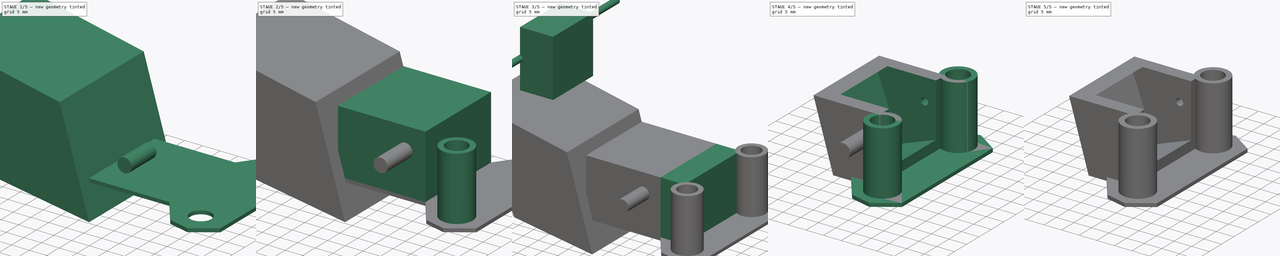
[diagram: build sequence overview — one tinted view per stage of 5, left to right]
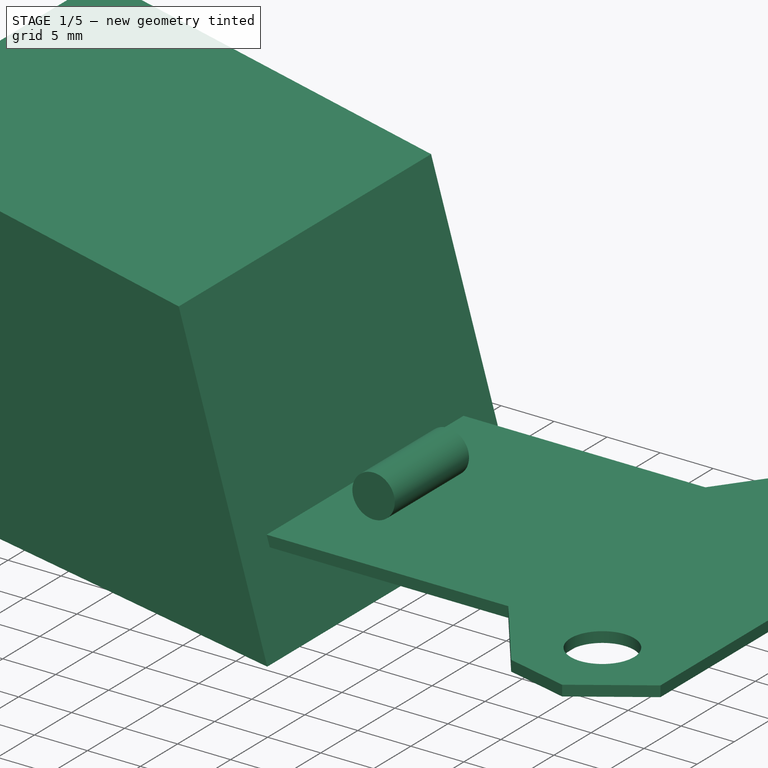
[diagram: stage 1 of 5 — iso view after this stage's code; geometry added in this stage tinted green]
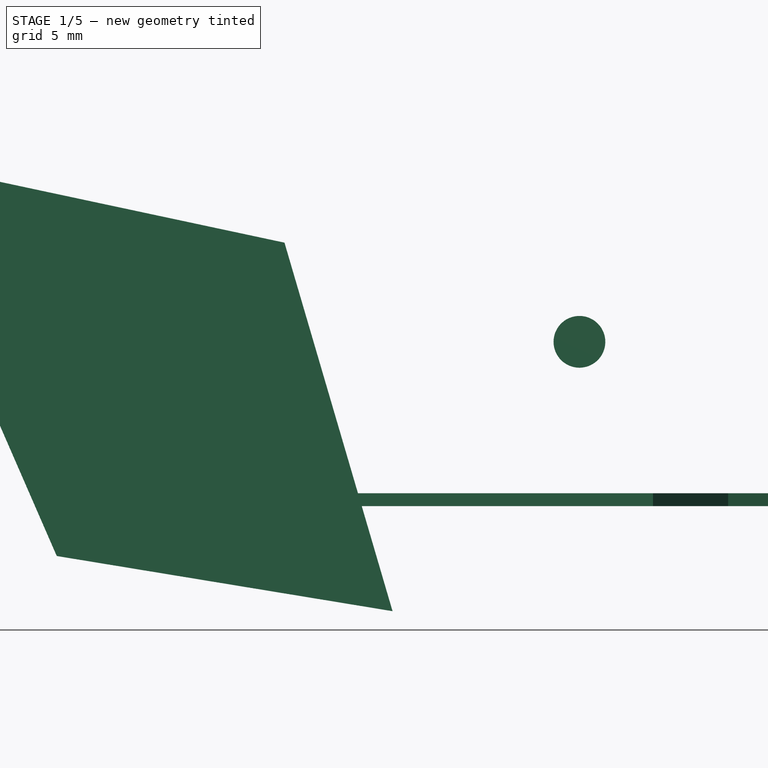
[diagram: stage 1 of 5 — front view after this stage's code; geometry added in this stage tinted green]
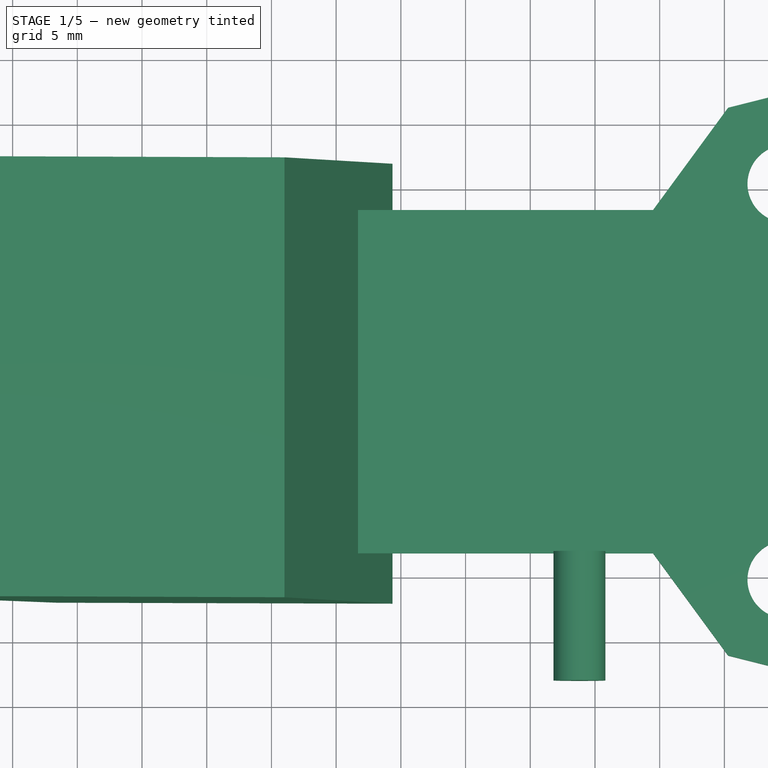
[diagram: stage 1 of 5 — top view after this stage's code; geometry added in this stage tinted green]
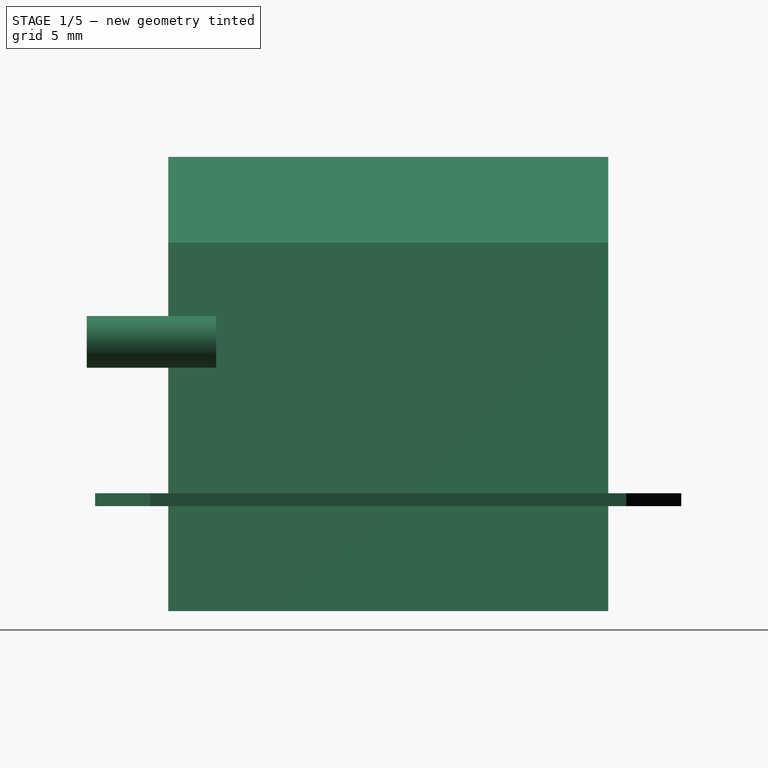
[diagram: stage 1 of 5 — right view after this stage's code; geometry added in this stage tinted green]
FCSTD DOCUMENT  (FreeCAD 0.19R24267 +99 (Git))
Label: mark4
License: All rights reserved
LicenseURL: http://en.wikipedia.org/wiki/All_rights_reserved
objects: PartDesign::Pad×8, Sketcher::SketchObject×6, Part::Cut×4, PartDesign::Body×3, PartDesign::Pocket×2, Part::Cylinder×2, App::MeasureDistance×1
note: 35 computed .brp shape members not serialized (recipe doc carries the construction recipe); baked Part::Feature solids carry a one-line shape summary decoded from their .brp

FEATURE [Sketcher::SketchObject] Sketch
  FullyConstrained = false
  MapMode = 5
  Support = -> [XY_Plane]
  sketch-geometry (14):
    g0: Circle CenterX=59.784 CenterY=15.3 CenterZ=0 NormalX=0 NormalY=0 NormalZ=1 AngleXU=0 Radius=3
    g1: LineSegment StartX=61.1287 StartY=22.645 StartZ=0 EndX=55.2887 EndY=21.1735 EndZ=0
    g2: LineSegment StartX=55.2887 StartY=21.1735 StartZ=0 EndX=49.4855 EndY=13.266 EndZ=0
    g3: LineSegment StartX=49.4855 StartY=13.266 StartZ=0 EndX=24.7194 EndY=13.266 EndZ=0
    g4: LineSegment StartX=24.7194 StartY=13.266 StartZ=0 EndX=24.7194 EndY=0 EndZ=0
    g5: LineSegment StartX=61.1287 StartY=22.645 StartZ=0 EndX=67.4243 EndY=18.3892 EndZ=0
    g6: LineSegment StartX=67.4243 StartY=18.3892 StartZ=0 EndX=67.4243 EndY=0 EndZ=0
    g7: Circle CenterX=59.784 CenterY=-15.3 CenterZ=0 NormalX=0 NormalY=0 NormalZ=1 AngleXU=0 Radius=3
    g8: LineSegment StartX=61.1287 StartY=-22.645 StartZ=0 EndX=55.2887 EndY=-21.1735 EndZ=0
    g9: LineSegment StartX=55.2887 StartY=-21.1735 StartZ=0 EndX=49.4855 EndY=-13.266 EndZ=0
    g10: LineSegment StartX=49.4855 StartY=-13.266 StartZ=0 EndX=24.7194 EndY=-13.266 EndZ=0
    g11: LineSegment StartX=24.7194 StartY=-13.266 StartZ=0 EndX=24.7194 EndY=0 EndZ=0
    g12: LineSegment StartX=61.1287 StartY=-22.645 StartZ=0 EndX=67.4243 EndY=-18.3892 EndZ=0
    g13: LineSegment StartX=67.4243 StartY=-18.3892 StartZ=0 EndX=67.4243 EndY=0 EndZ=0
  constraints (21):
    c: Diameter(g0) = 6
    c: DistanceY(g-1,g0) = 15.3
    c: Coincident(g1,g2)
    c: Coincident(g2,g3)
    c: Horizontal(g3)
    c: Coincident(g3,g4)
    c: PointOnObject(g4,g-1)
    c: Vertical(g4)
    c: Coincident(g1,g5)
    c: Coincident(g5,g6)
    c: PointOnObject(g6,g-1)
    c: Vertical(g6)
    c: Diameter(g7) = 6
    c: Coincident(g8,g9)
    c: Coincident(g9,g10)
    c: Horizontal(g10)
    c: Coincident(g10,g11)
    c: Vertical(g11)
    c: Coincident(g8,g12)
    c: Coincident(g12,g13)
    c: Vertical(g13)
FEATURE [PartDesign::Pad] Pad
  Direction = (1,1,1)
  Length = 1
  Length2 = 100
  Profile = -> Sketch
  Type = 0
FEATURE [Sketcher::SketchObject] Sketch005
  FullyConstrained = false
  MapMode = 5
  Placement = pos=(0,0,0) rot=(1,0,0;1.5708rad)
  Support = -> [XZ_Plane002]
  sketch-geometry (4):
    g0: LineSegment StartX=21.0075 StartY=20.3644 StartZ=0 EndX=29.3592 EndY=-8.11339 EndZ=0
    g1: LineSegment StartX=29.3592 StartY=-8.11339 StartZ=0 EndX=3.41123 EndY=-3.85064 EndZ=0
    g2: LineSegment StartX=3.41123 StartY=-3.85064 StartZ=0 EndX=-10.028 EndY=26.9953 EndZ=0
    g3: LineSegment StartX=-10.028 StartY=26.9953 StartZ=0 EndX=21.0075 EndY=20.3644 EndZ=0
  constraints (4):
    c: Coincident(g0,g1)
    c: Coincident(g1,g2)
    c: Coincident(g2,g3)
    c: Coincident(g3,g0)
FEATURE [PartDesign::Pad] Pad007
  Direction = (1,1,1)
  Length = 34
  Length2 = 100
  Midplane = true
  Placement = pos=(0,0,0) rot=(1,0,0;1.5708rad)
  Profile = -> Sketch005
  Type = 0
FEATURE [Part::Cylinder] Cylinder  label="圆柱体"
  Angle = 360
  AttacherType = Attacher::AttachEngine3D
  Height = 10
  Placement = pos=(43.8,-13.3,12.7) rot=(1,0,0;1.5708rad)
  Radius = 2
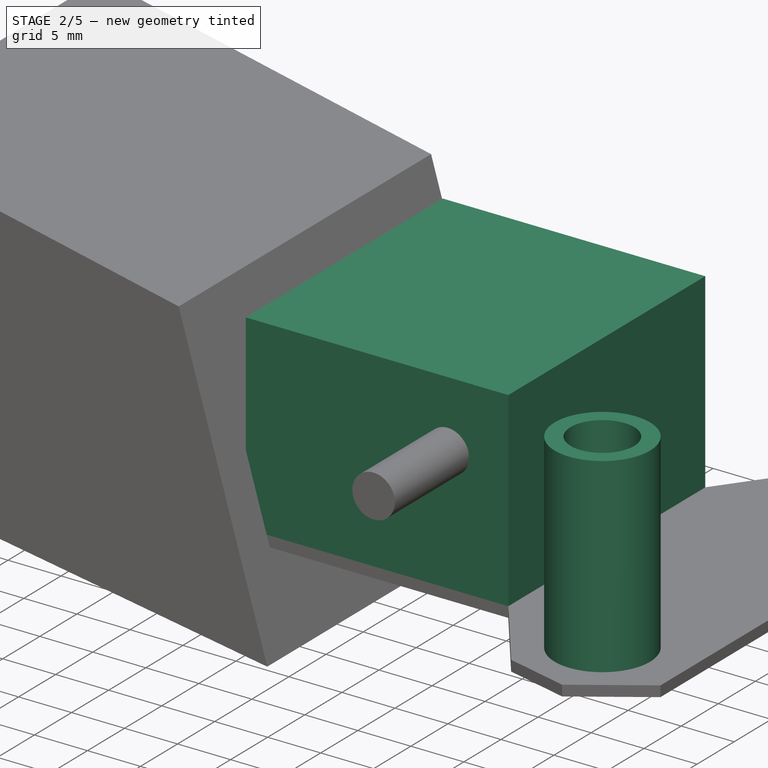
[diagram: stage 2 of 5 — iso view after this stage's code; geometry added in this stage tinted green]
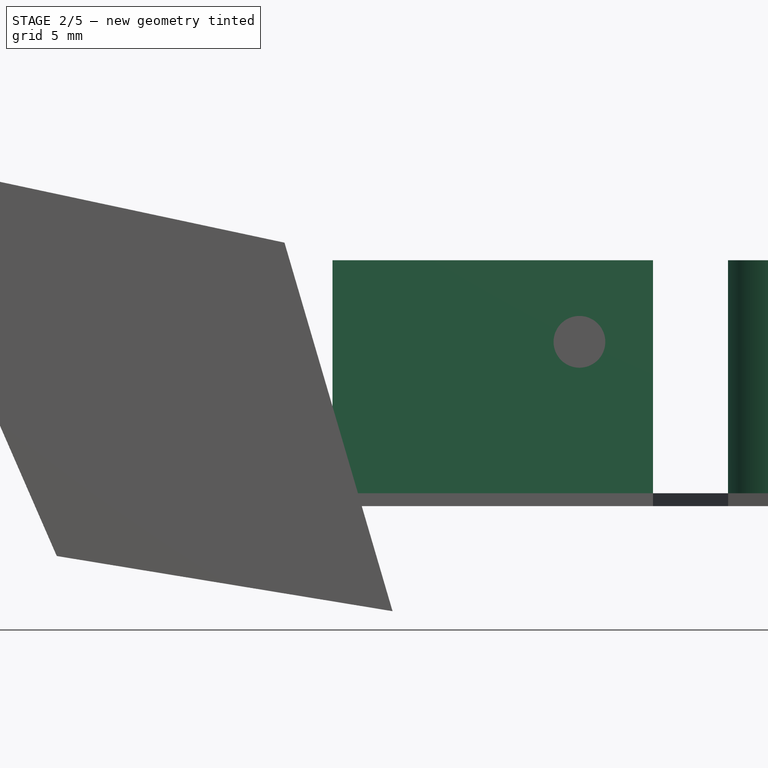
[diagram: stage 2 of 5 — front view after this stage's code; geometry added in this stage tinted green]
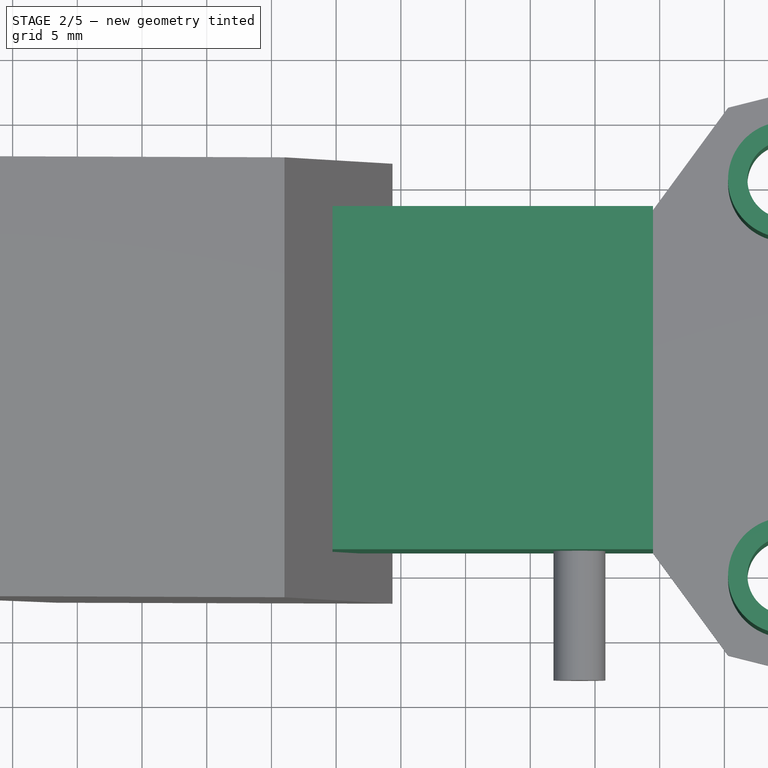
[diagram: stage 2 of 5 — top view after this stage's code; geometry added in this stage tinted green]
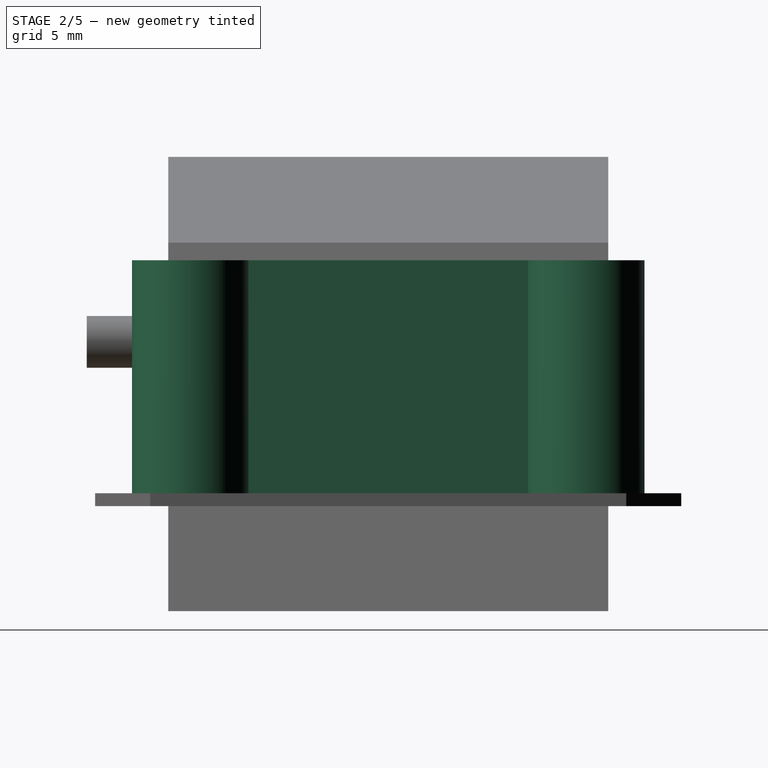
[diagram: stage 2 of 5 — right view after this stage's code; geometry added in this stage tinted green]
FEATURE [Sketcher::SketchObject] Sketch001
  ExternalGeometry = -> [Pad]
  FullyConstrained = false
  MapMode = 5
  Placement = pos=(0,0,1) rot=(0,0,1;0rad)
  Support = -> [Pad]
  sketch-geometry (8):
    g0: LineSegment StartX=24.7194 StartY=0 StartZ=0 EndX=24.7194 EndY=13.266 EndZ=0
    g1: LineSegment StartX=24.7194 StartY=13.266 StartZ=0 EndX=49.4855 EndY=13.266 EndZ=0
    g2: LineSegment StartX=49.4855 StartY=13.266 StartZ=0 EndX=49.4855 EndY=0 EndZ=0
    g3: Circle CenterX=59.784 CenterY=15.3 CenterZ=0 NormalX=0 NormalY=0 NormalZ=1 AngleXU=0 Radius=4.5
    g4: LineSegment StartX=24.7194 StartY=0 StartZ=0 EndX=24.7194 EndY=-13.266 EndZ=0
    g5: LineSegment StartX=24.7194 StartY=-13.266 StartZ=0 EndX=49.4855 EndY=-13.266 EndZ=0
    g6: LineSegment StartX=49.4855 StartY=-13.266 StartZ=0 EndX=49.4855 EndY=0 EndZ=0
    g7: Circle CenterX=59.784 CenterY=-15.3 CenterZ=0 NormalX=0 NormalY=0 NormalZ=1 AngleXU=0 Radius=4.5
  constraints (8):
    c: Coincident(g1,g2)
    c: PointOnObject(g2,g-1)
    c: Vertical(g2)
    c: Coincident(g3,g-3)
    c: Diameter(g3) = 9
    c: Coincident(g5,g6)
    c: Vertical(g6)
    c: Diameter(g7) = 9
FEATURE [PartDesign::Pad] Pad001
  BaseFeature = -> Pad
  Direction = (1,1,1)
  Length = 18
  Length2 = 100
  Profile = -> Sketch001
  Type = 0
FEATURE [PartDesign::Pocket] Pocket
  BaseFeature = -> Pad001
  Length = 22
  Length2 = 100
  Profile = -> Pad001 [Face25]
  Type = 0
FEATURE [PartDesign::Pocket] Pocket001
  BaseFeature = -> Pocket
  Length = 31
  Length2 = 100
  Profile = -> Pocket [Face26]
  Type = 0
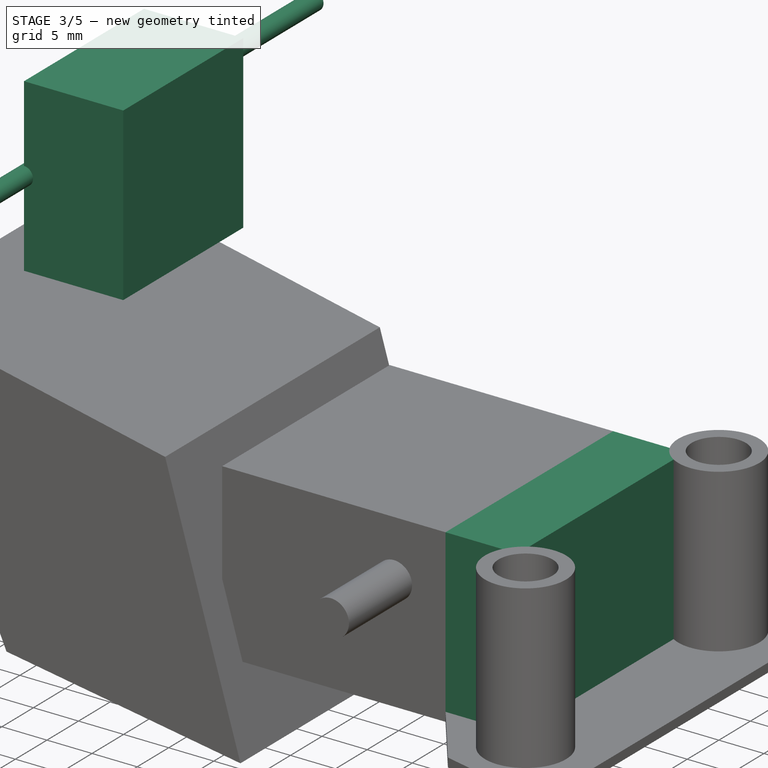
[diagram: stage 3 of 5 — iso view after this stage's code; geometry added in this stage tinted green]
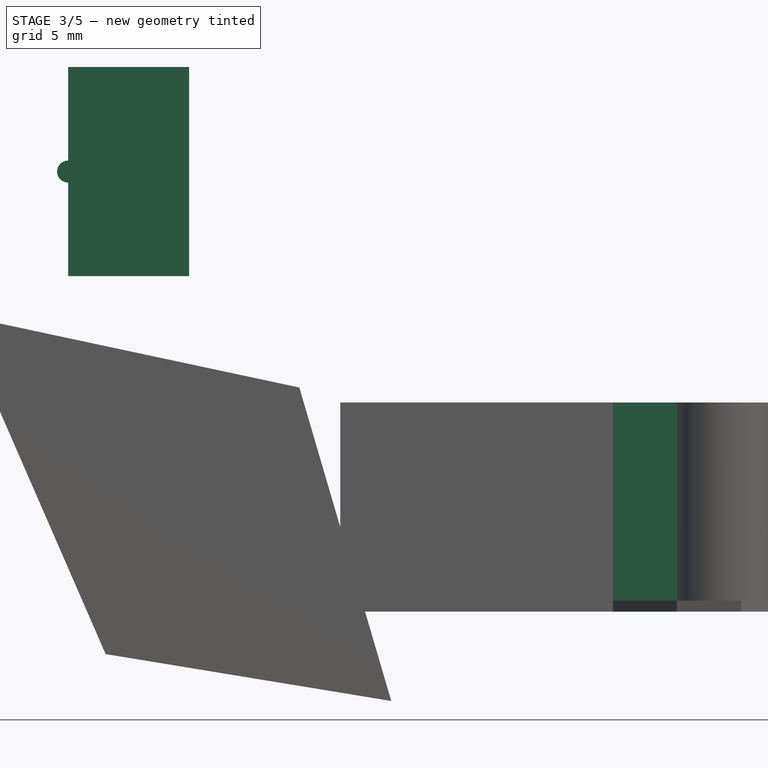
[diagram: stage 3 of 5 — front view after this stage's code; geometry added in this stage tinted green]
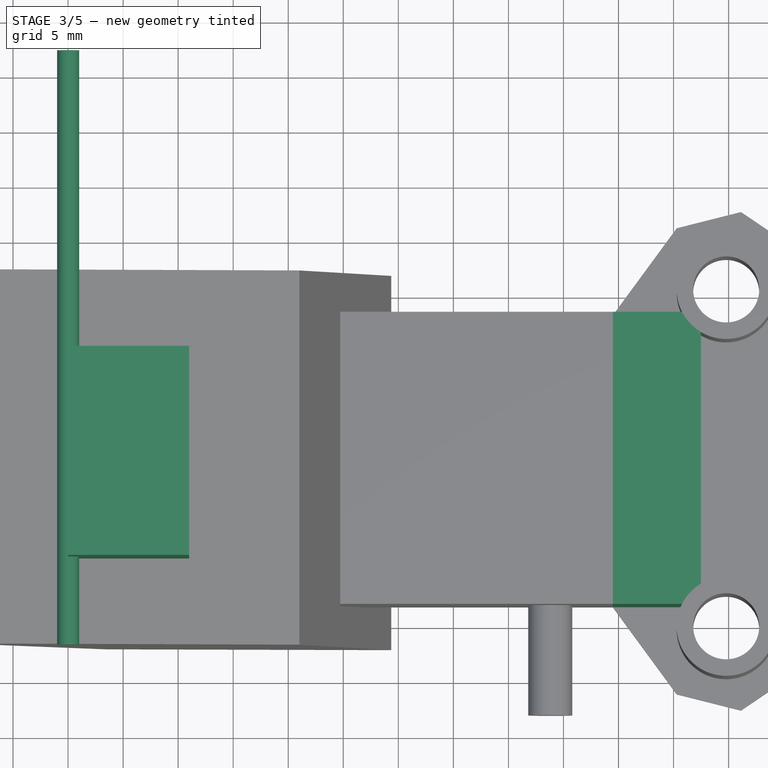
[diagram: stage 3 of 5 — top view after this stage's code; geometry added in this stage tinted green]
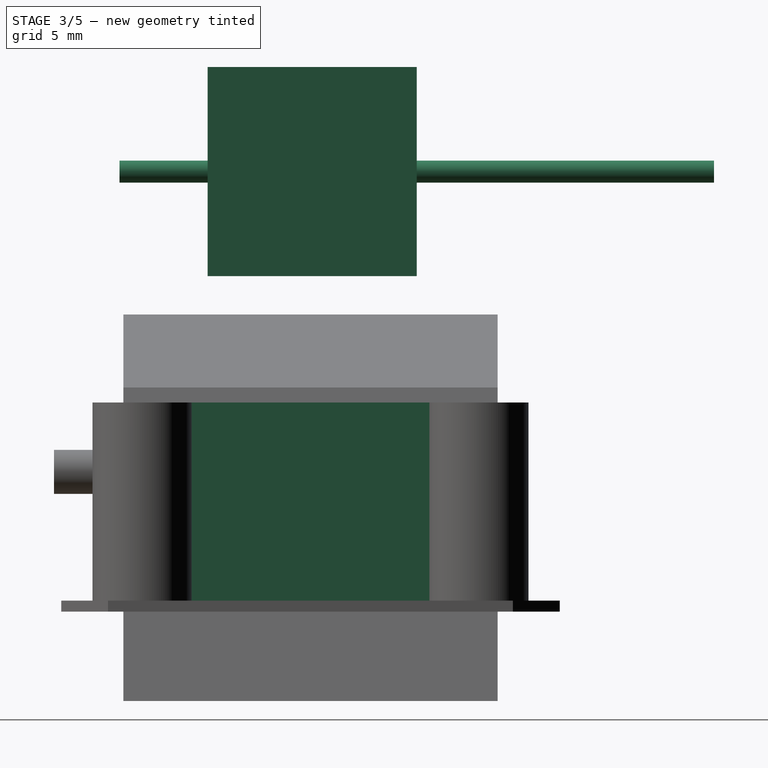
[diagram: stage 3 of 5 — right view after this stage's code; geometry added in this stage tinted green]
FEATURE [Sketcher::SketchObject] Sketch002
  FullyConstrained = false
  MapMode = 5
  Placement = pos=(0,0,0) rot=(0.57735,0.57735,0.57735;2.0944rad)
  Support = -> [YZ_Plane001]
  sketch-geometry (4):
    g0: LineSegment StartX=-9.34372 StartY=49.4769 StartZ=0 EndX=9.65628 EndY=49.4769 EndZ=0
    g1: LineSegment StartX=9.65628 StartY=49.4769 StartZ=0 EndX=9.65628 EndY=30.4769 EndZ=0
    g2: LineSegment StartX=9.65628 StartY=30.4769 StartZ=0 EndX=-9.34372 EndY=30.4769 EndZ=0
    g3: LineSegment StartX=-9.34372 StartY=30.4769 StartZ=0 EndX=-9.34372 EndY=49.4769 EndZ=0
  constraints (10):
    c: Coincident(g0,g1)
    c: Coincident(g1,g2)
    c: Coincident(g2,g3)
    c: Coincident(g3,g0)
    c: Horizontal(g0)
    c: Horizontal(g2)
    c: Vertical(g1)
    c: Vertical(g3)
    c: Distance(g0) = 19
    c: Distance(g3) = 19
FEATURE [PartDesign::Pad] Pad002
  Direction = (1,1,1)
  Length = 11
  Length2 = 100
  Placement = pos=(0,0,0) rot=(0.57735,0.57735,0.57735;2.0944rad)
  Profile = -> Sketch002
  Type = 0
FEATURE [Sketcher::SketchObject] Sketch003
  ExternalGeometry = -> [Pad002]
  FullyConstrained = true
  MapMode = 5
  Placement = pos=(4.2e-15,9.65628,-2.1e-15) rot=(0.57735,0.57735,0.57735;4.18879rad)
  Support = -> [Pad002]
  sketch-geometry (3):
    g0: Circle CenterX=39.9769 CenterY=0 CenterZ=0 NormalX=0 NormalY=0 NormalZ=1 AngleXU=0 Radius=1
    g1: LineSegment StartX=30.4769 StartY=-1.4e-14 StartZ=0 EndX=39.9769 EndY=0 EndZ=0
    g2: LineSegment StartX=39.9769 StartY=0 StartZ=0 EndX=49.4769 EndY=-2.14e-14 EndZ=0
  constraints (7):
    c: PointOnObject(g0,g-1)
    c: Coincident(g1,g-4)
    c: Coincident(g1,g0)
    c: Coincident(g2,g0)
    c: Coincident(g2,g-3)
    c: Equal(g1,g2)
    c: Diameter(g0) = 2
FEATURE [PartDesign::Pad] Pad003
  BaseFeature = -> Pad002
  Direction = (1,1,1)
  Length = 54
  Length2 = 100
  Midplane = true
  Placement = pos=(0,0,0) rot=(0.57735,0.57735,0.57735;2.0944rad)
  Profile = -> Sketch003
  Type = 0
FEATURE [PartDesign::Body] Body001
  Group = -> [Sketch002,Pad002,Sketch003,Pad003,Pad004]
  Origin = -> Origin001
  Placement = pos=(29.9378,0,50.2579) rot=(0,1,0;2.78729rad)
  Tip = -> Pad004
FEATURE [App::MeasureDistance] Distance  label="Distance: 1.50 mm"
  Distance = 1.49773
  P1 = (46.4017,15.4454,19)
  P2 = (44.9428,15.7846,19)
FEATURE [PartDesign::Pad] Pad005
  BaseFeature = -> Pocket001
  Direction = (1,1,1)
  Length = 8
  Length2 = 100
  Profile = -> Pocket001 [Face18]
  Type = 0
FEATURE [PartDesign::Pad] Pad006
  BaseFeature = -> Pad005
  Direction = (1,1,1)
  Length = 8
  Length2 = 100
  Profile = -> Pad005 [Face17]
  Type = 0
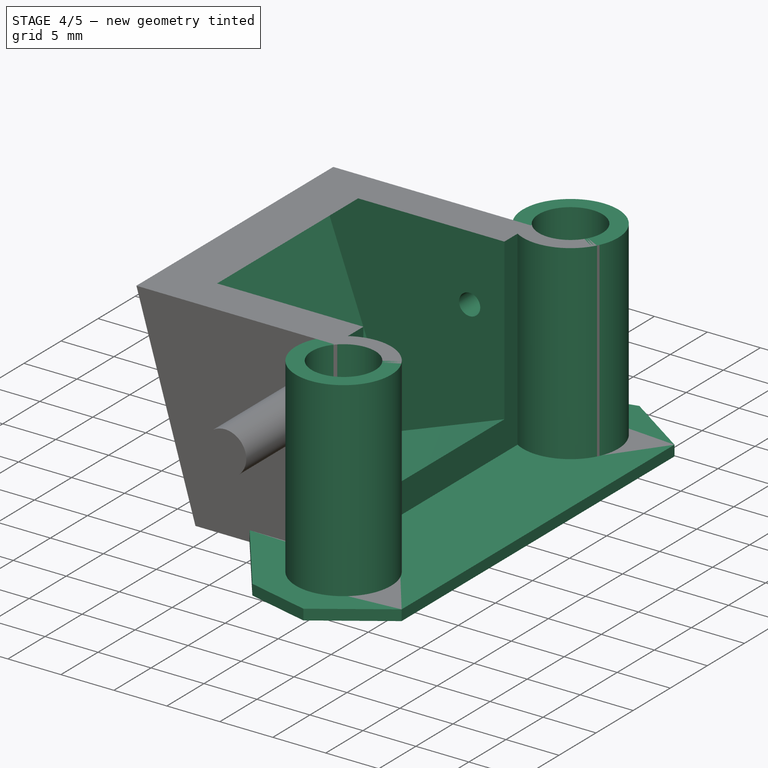
[diagram: stage 4 of 5 — iso view after this stage's code; geometry added in this stage tinted green]
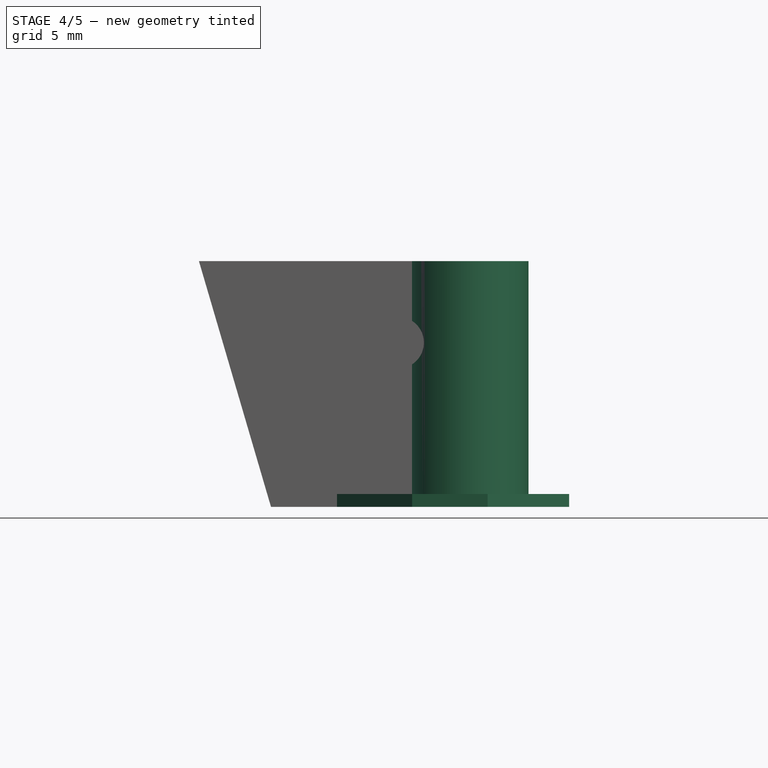
[diagram: stage 4 of 5 — front view after this stage's code; geometry added in this stage tinted green]
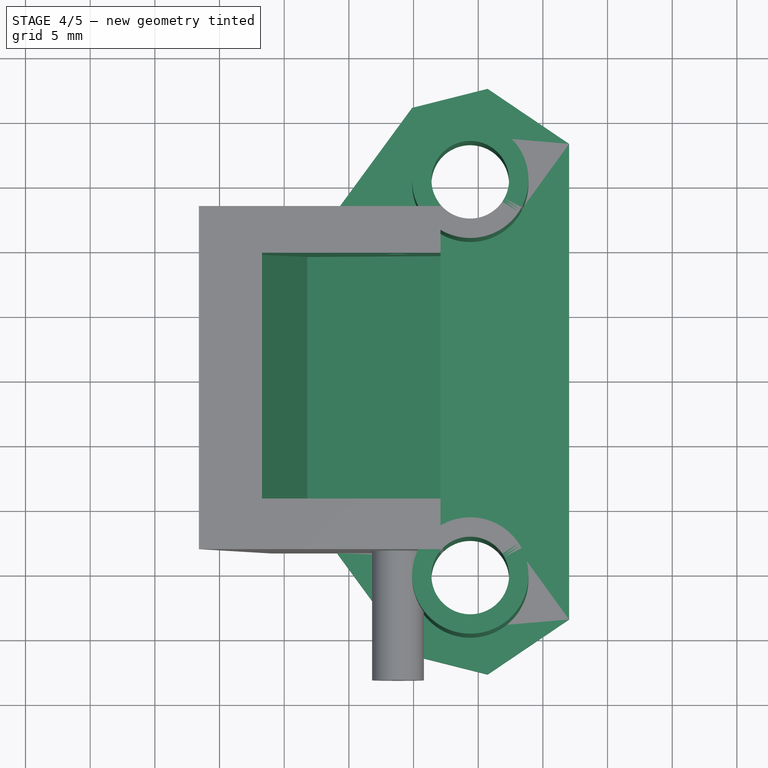
[diagram: stage 4 of 5 — top view after this stage's code; geometry added in this stage tinted green]
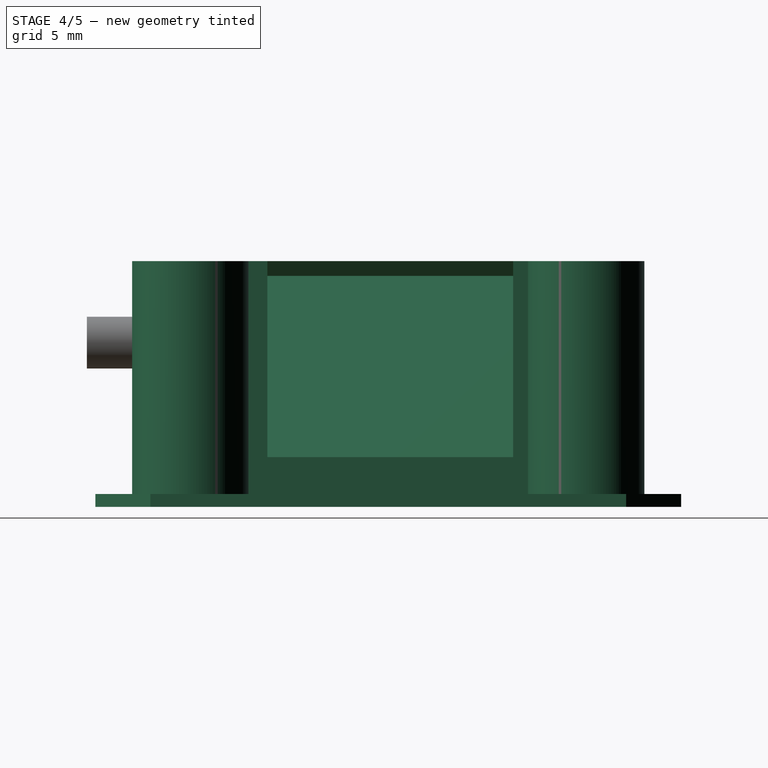
[diagram: stage 4 of 5 — right view after this stage's code; geometry added in this stage tinted green]
FEATURE [Sketcher::SketchObject] Sketch004
  FullyConstrained = false
  MapMode = 5
  Placement = pos=(0,13.266,0) rot=(0,0.707107,0.707107;3.14159rad)
  Support = -> [Pocket001]
  sketch-geometry (2):
    g0: LineSegment StartX=-55.3176 StartY=18.9902 StartZ=0 EndX=-55.3176 EndY=0 EndZ=0
    g1: LineSegment StartX=-55.3176 StartY=10.6524 StartZ=0 EndX=-49.3176 EndY=10.6524 EndZ=0
  constraints (5):
    c: PointOnObject(g0,g-1)
    c: Vertical(g0)
    c: PointOnObject(g1,g0)
    c: Horizontal(g1)
    c: Distance(g1) = 6
FEATURE [PartDesign::Pad] Pad004
  BaseFeature = -> Pad003
  Direction = (1,1,1)
  Length = 24
  Length2 = 100
  Placement = pos=(0,0,0) rot=(0.57735,0.57735,0.57735;2.0944rad)
  Profile = -> Pad003 [Face5]
  Reversed = true
  Type = 0
FEATURE [PartDesign::Body] Body
  Group = -> [Sketch,Pad,Sketch001,Pad001,Pocket,Pocket001,Sketch004,Pad005,Pad006]
  Origin = -> Origin
  Placement = pos=(-10.4,0,0) rot=(0,0,1;0rad)
  Tip = -> Pad006
FEATURE [Part::Cut] Cut
  Base = -> Body
  Tool = -> Body001
FEATURE [PartDesign::Body] Body002
  Group = -> [Sketch005,Pad007]
  Origin = -> Origin002
  Placement = pos=(7,0,0) rot=(0,0,1;0rad)
  Tip = -> Pad007
FEATURE [Part::Cut] Cut001
  Base = -> Cut
  Tool = -> Body002
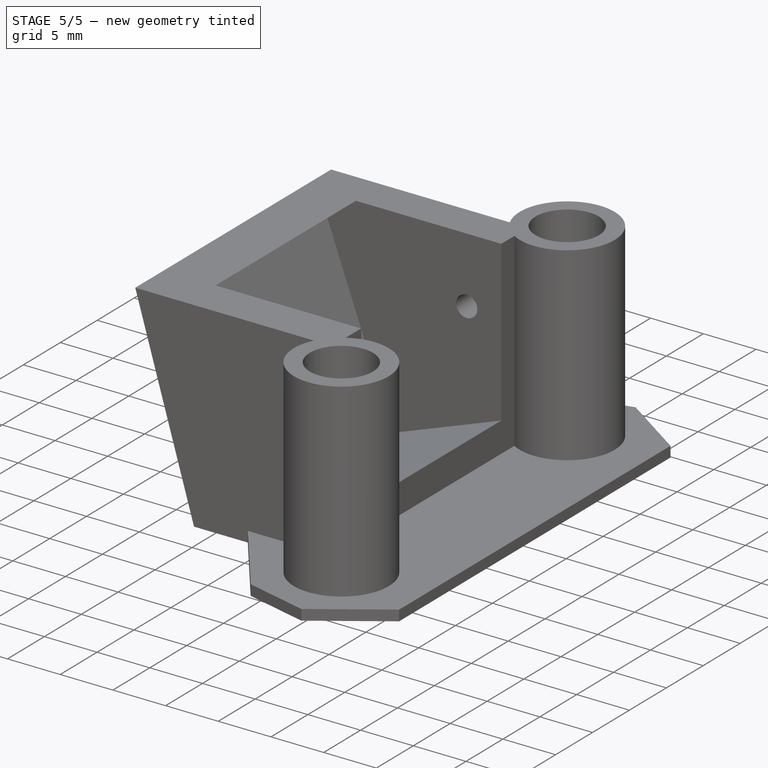
[diagram: stage 5 of 5 — iso view after this stage's code; geometry added in this stage tinted green]
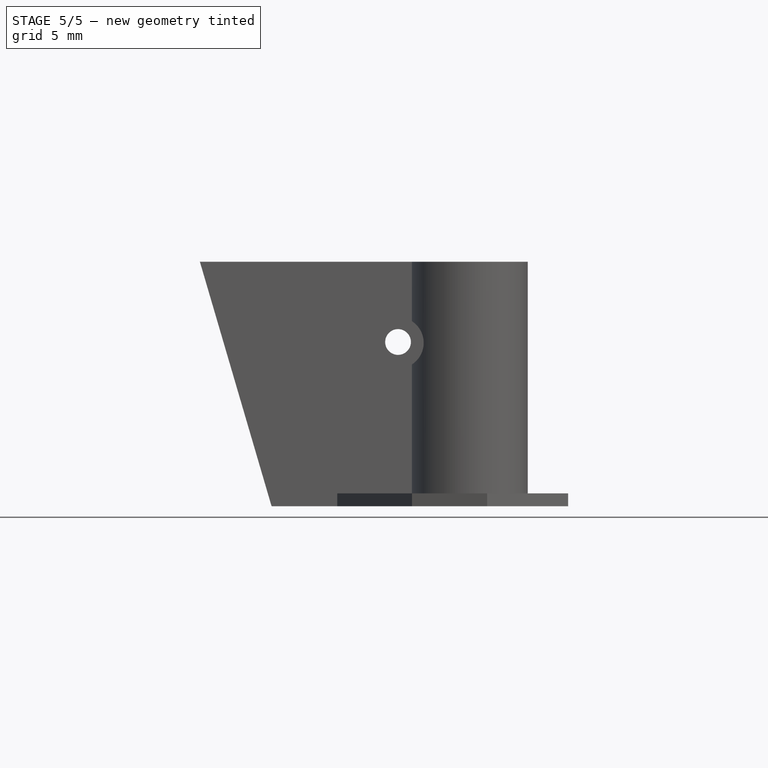
[diagram: stage 5 of 5 — front view after this stage's code; geometry added in this stage tinted green]
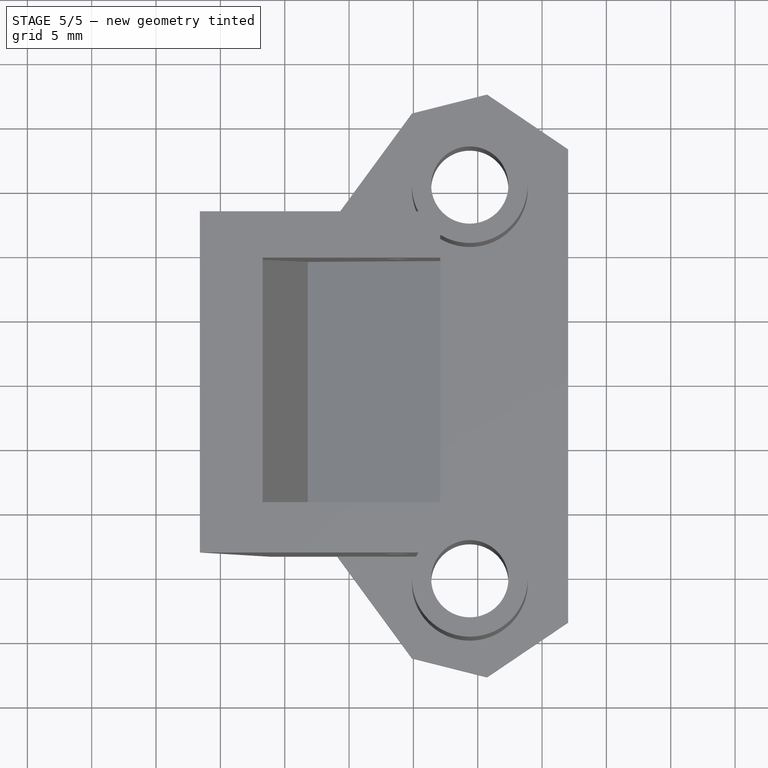
[diagram: stage 5 of 5 — top view after this stage's code; geometry added in this stage tinted green]
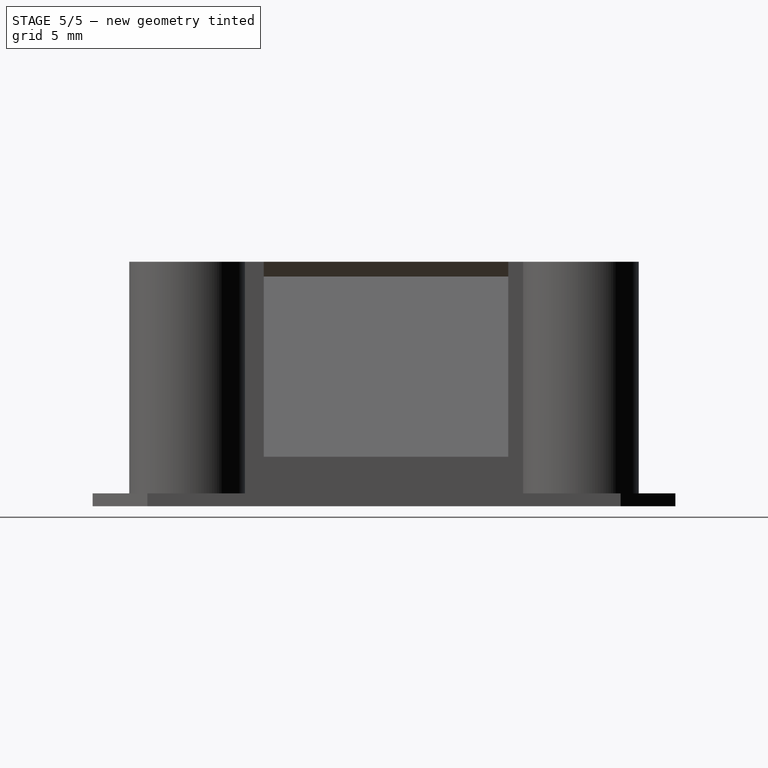
[diagram: stage 5 of 5 — right view after this stage's code; geometry added in this stage tinted green]
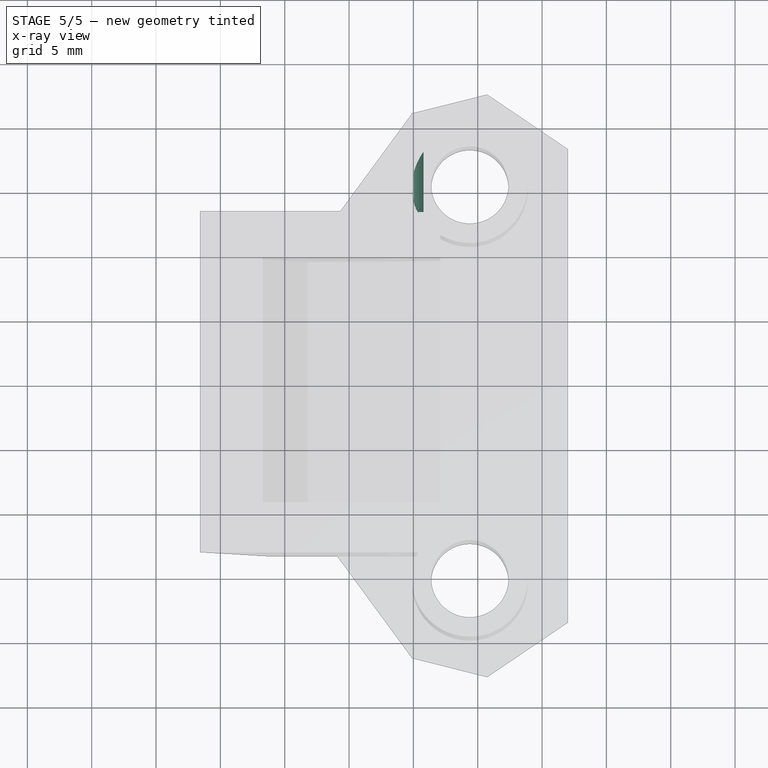
[diagram: stage 5 of 5 — x-ray composite at the top view; earlier geometry ghosted, this stage's added geometry solid]
FEATURE [Part::Cylinder] Cylinder001  label="圆柱体001"
  Angle = 360
  AttacherType = Attacher::AttachEngine3D
  Height = 10
  Placement = pos=(43.8,13.3,12.7) rot=(0,0.707107,0.707107;3.14159rad)
  Radius = 2
FEATURE [Part::Cut] Cut002
  Base = -> Cut001
  Tool = -> Cylinder
FEATURE [Part::Cut] Cut003
  Base = -> Cut002
  Tool = -> Cylinder001
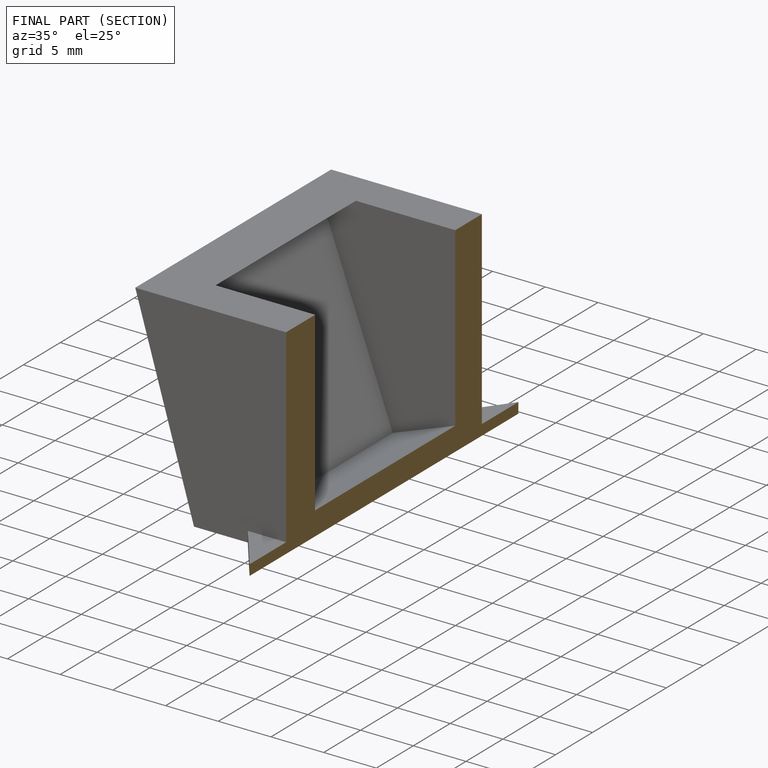
[diagram: finished part — half-section view (interior)]
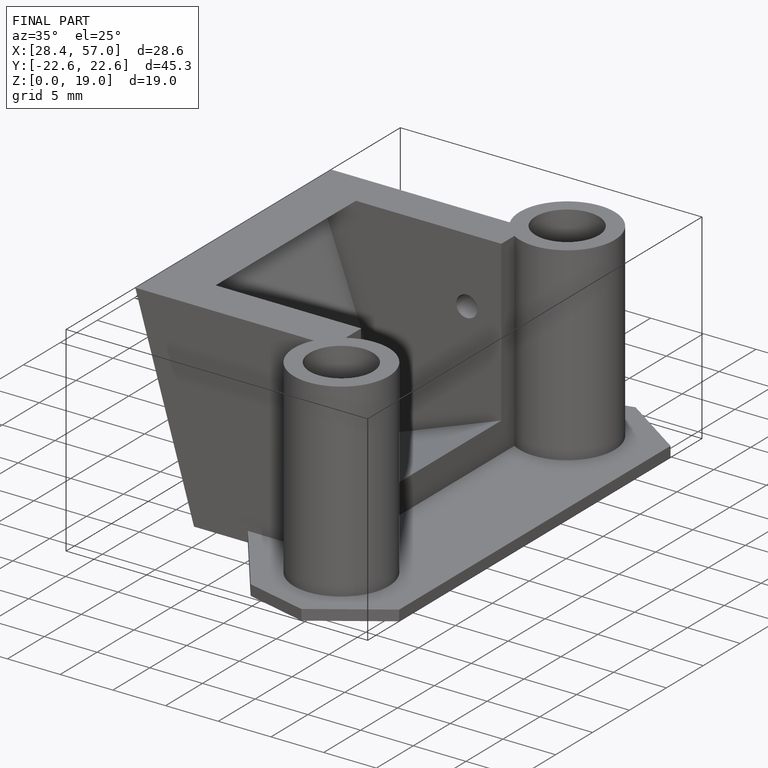
[diagram: finished part — iso view with bounding-box wireframe]
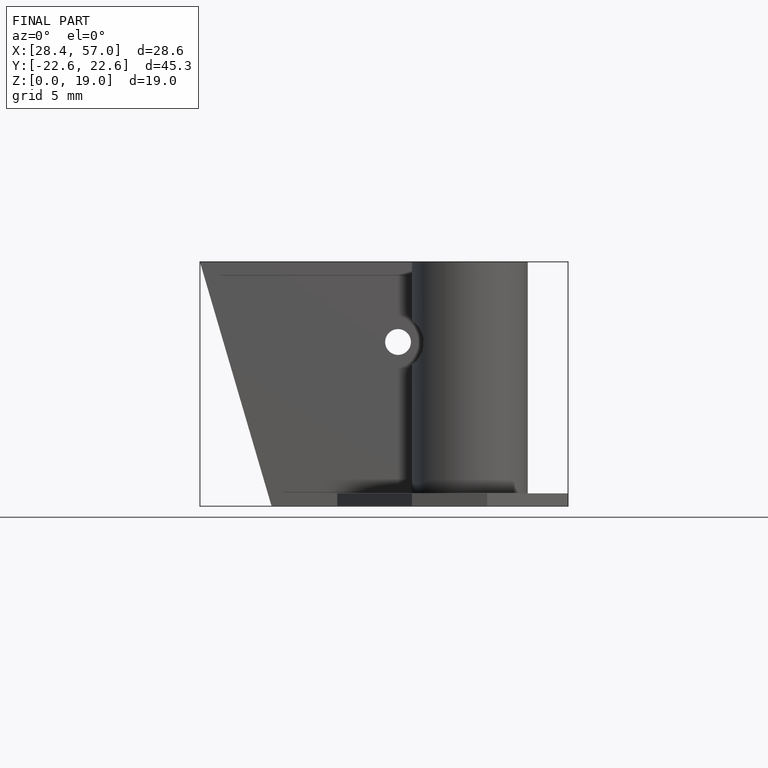
[diagram: finished part — front view with bounding-box wireframe]
